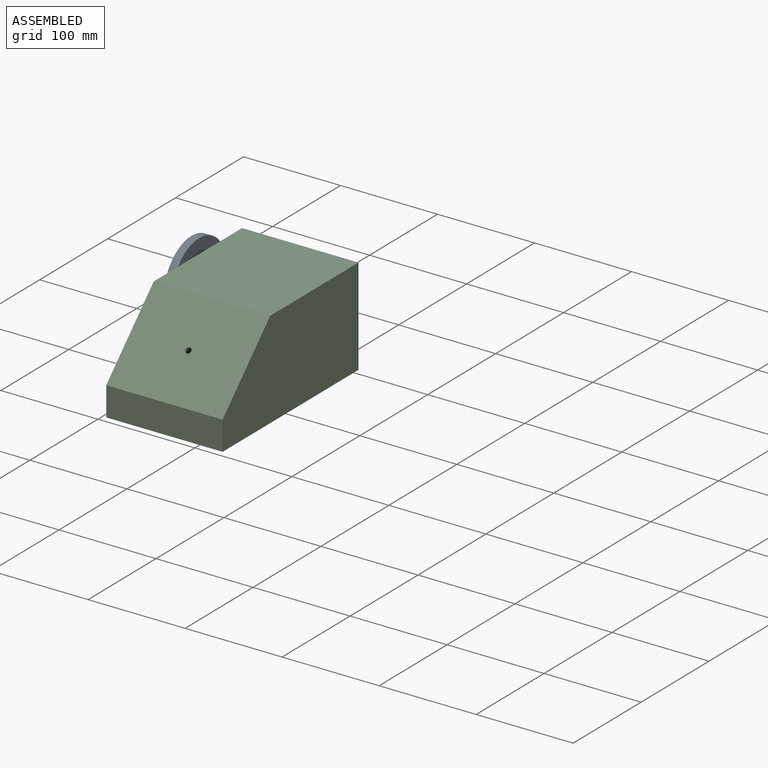
[diagram: assembled view]
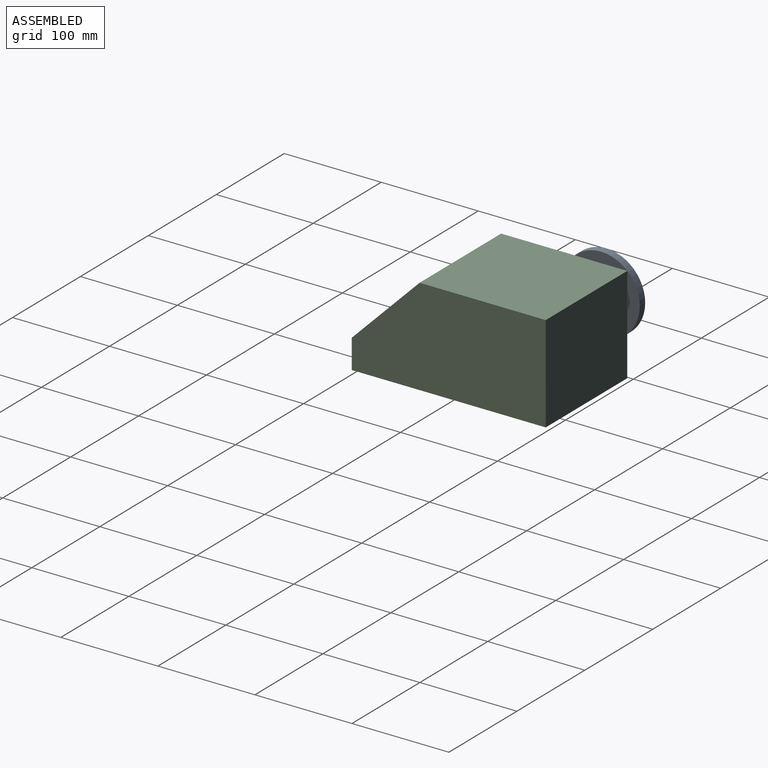
[diagram: assembled view, second angle]
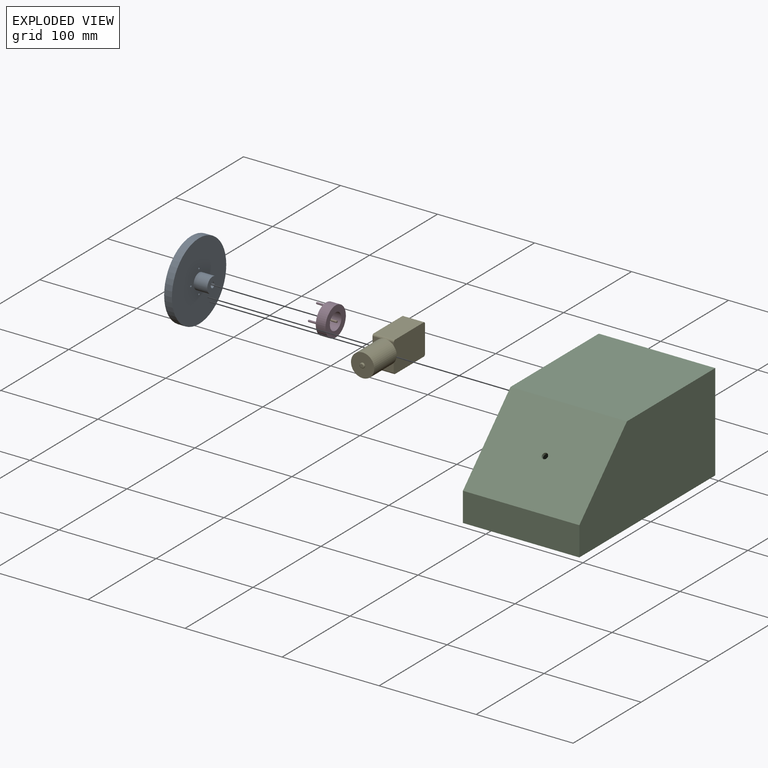
[diagram: exploded view]
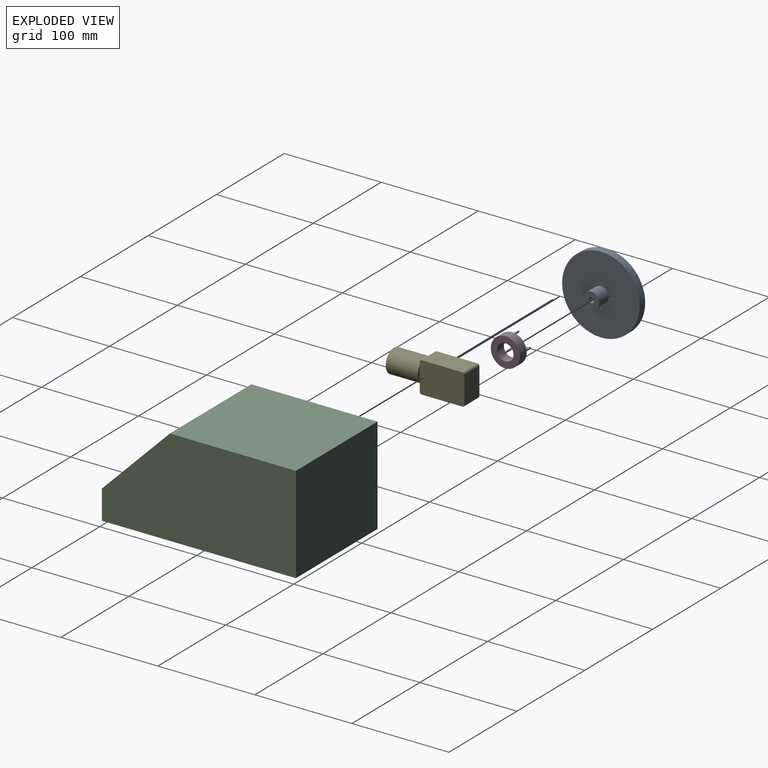
[diagram: exploded view, second angle]
ASSEMBLY  parts=5 mates=4
PART A: 15 faces, bbox 80x80x23.8 mm
  f0: cylinder r=1mm len=17mm, axis (0,0,1), area 106.8mm2, adj f2,f14
  f1: plane 80x80mm, normal (0,0,1), area 4366mm2, adj f3,f7
  f2: plane 15.94x15.94mm, normal (0,0,1), area 196.4mm2, adj f0,f8
  f3: cylinder r=40mm len=80mm, axis (0,0,-1), area 2010.6mm2, adj f1,f4
  f4: plane 80x80mm, normal (0,0,-1), area 4812.9mm2, adj f3,f5,f9,f10,f11,f12
  f5: cylinder r=8mm len=16mm, axis (0,0,1), area 703.7mm2, adj f4,f6
  f6: plane 16x16mm, normal (0,0,-1), area 177.3mm2, adj f5,f13
  f7: torus R=12mm, axis (0,0,1), area 510mm2, adj f1,f8,f9,f10,f11,f12
  f8: torus R=7.97mm, axis (0,0,-1), area 125.1mm2, adj f2,f7
  f9: cylinder r=1mm len=5.71mm, axis (0,0,-1), area 35.2mm2, adj f4,f7
  f10: cylinder r=1mm len=5.71mm, axis (0,0,-1), area 35.2mm2, adj f4,f7
  f11: cylinder r=1mm len=5.71mm, axis (0,0,-1), area 35.2mm2, adj f4,f7
  f12: cylinder r=1mm len=5.71mm, axis (0,0,-1), area 35.2mm2, adj f4,f7
  f13: cylinder r=2.75mm len=5.5mm, axis (0,0,-1), area 86.4mm2, adj f6,f14
  f14: plane 5.5x5.5mm, normal (0,0,-1), area 20.6mm2, adj f0,f13
PART B: 7 faces, bbox 2x2x20 mm
  f0: plane 1.94x0.75mm, normal (0,0,1), area 1.1mm2, adj f1,f5
  f1: cylinder r=1mm len=20mm, axis (0,0,-1), area 120.6mm2, adj f0,f2,f3,f4,f5,f6
  f2: plane 1.94x0.75mm, normal (0,0,1), area 1.1mm2, adj f1,f4
  f3: plane 2x2mm, normal (0,0,-1), area 3.1mm2, adj f1
  f4: plane 5x1.94mm, normal (-1,0,0), area 9.7mm2, adj f1,f2,f6
  f5: plane 5x1.94mm, normal (1,0,0), area 9.7mm2, adj f0,f1,f6
  f6: plane 2x0.5mm, normal (0,0,1), area 1mm2, adj f1,f4,f5
PART C: 19 faces, bbox 120x200x100 mm
  f0: plane 200x120mm, normal (0,0,-1), area 1884mm2, adj f1,f2,f3,f4,f7,f8,f9,f10
  f1: plane 120x30mm, normal (0,-1,0), area 3600mm2, adj f0,f2,f4,f6
  f2: plane 200x100mm, normal (1,0,0), area 17550mm2, adj f0,f1,f3,f5,f6
  f3: plane 120x100mm, normal (0,1,0), area 12000mm2, adj f0,f2,f4,f5
  f4: plane 200x100mm, normal (-1,0,0), area 17471.5mm2, adj f0,f1,f3,f5,f6,f13,f14,f15
  f5: plane 130x120mm, normal (0,0,1), area 15600mm2, adj f2,f3,f4,f6
  f6: plane 120x70mm, normal (0,-0.71,0.71), area 11851.1mm2, adj f1,f2,f4,f5,f18
  f7: plane 114x28.76mm, normal (0,1,0), area 3278.3mm2, adj f0,f8,f10,f12
  f8: plane 194x97mm, normal (-1,0,0), area 16489.5mm2, adj f0,f7,f9,f11,f12
  f9: plane 114x97mm, normal (0,-1,0), area 11058mm2, adj f0,f8,f10,f11
  f10: plane 194x97mm, normal (1,0,0), area 16410.9mm2, adj f0,f7,f9,f11,f12,f13,f14,f15
  f11: plane 125.76x114mm, normal (0,0,-1), area 14336.3mm2, adj f8,f9,f10,f12
  f12: plane 114x68.24mm, normal (0,0.71,-0.71), area 10973.8mm2, adj f7,f8,f10,f11,f18
  f13: cylinder r=1.5mm len=3mm, axis (-1,0,0), area 28.3mm2, adj f4,f10
  f14: cylinder r=1.5mm len=3mm, axis (-1,0,0), area 28.3mm2, adj f4,f10
  f15: cylinder r=1.5mm len=3mm, axis (-1,0,0), area 28.3mm2, adj f4,f10
  f16: cylinder r=1.5mm len=3mm, axis (-1,0,0), area 28.3mm2, adj f4,f10
  f17: cylinder r=4mm len=8mm, axis (-1,0,0), area 75.4mm2, adj f4,f10
  f18: cylinder r=3mm len=6.36mm, axis (0,-0.71,0.71), area 56.5mm2, adj f6,f12
PART D: 12 faces, bbox 30x30x20 mm
  f0: cylinder r=8.5mm len=17mm, axis (0,0,-1), area 534.1mm2, adj f2,f3
  f1: cylinder r=15mm len=30mm, axis (0,0,-1), area 942.5mm2, adj f2,f3
  f2: plane 30x30mm, normal (0,0,1), area 467.3mm2, adj f0,f1,f4,f5,f6,f7
  f3: plane 30x30mm, normal (0,0,-1), area 479.9mm2, adj f0,f1
  f4: cylinder r=1mm len=9mm, axis (0,0,-1), area 56.5mm2, adj f2,f11
  f5: cylinder r=1mm len=9mm, axis (0,0,-1), area 56.5mm2, adj f2,f9
  f6: cylinder r=1mm len=9mm, axis (0,0,-1), area 56.5mm2, adj f2,f8
  f7: cylinder r=1mm len=9mm, axis (0,0,-1), area 56.5mm2, adj f2,f10
  f8: sphere r=1mm, area 6.3mm2, adj f6
  f9: sphere r=1mm, area 6.3mm2, adj f5
  f10: sphere r=1mm, area 6.3mm2, adj f7
  f11: sphere r=1mm, area 6.3mm2, adj f4
PART E: 40 faces, bbox 32x80.5x41 mm
  f0: plane 4.2x3.06mm, normal (0,-1,0), area 5.4mm2, adj f6,f28,f34
  f1: plane 28x22mm, normal (0,-1,0), area 197.3mm2, adj f5,f6,f28,f36,f39
  f2: plane 42.27x22mm, normal (1,0,0), area 925.3mm2, adj f5,f6,f34,f35,f36,f37
  f3: plane 28x22mm, normal (0,1,0), area 616mm2, adj f5,f6,f37,f38
  f4: plane 42x22mm, normal (-1,0,0), area 924mm2, adj f5,f6,f38,f39
  f5: plane 46x32mm, normal (0,0,1), area 1181.9mm2, adj f1,f2,f3,f4,f7,f13,f17,f21
  f6: plane 46x32mm, normal (0,0,-1), area 1468.6mm2, adj f0,f1,f2,f3,f4,f30,f34,f37
  f7: cylinder r=6.5mm len=13mm, axis (0,0,-1), area 81.7mm2, adj f5,f8
  f8: plane 13x13mm, normal (0,0,1), area 114.7mm2, adj f7,f9,f10
  f9: cylinder r=2.75mm len=14mm, axis (0,0,-1), area 154mm2, adj f8,f10,f11
  f10: plane 14x5mm, normal (0,1,0), area 70mm2, adj f8,f9,f11
  f11: plane 5.5x3.9mm, normal (0,0,1), area 18mm2, adj f9,f10
  f12: cylinder r=1.5mm len=3mm, axis (0,0,-1), area 18.8mm2, adj f14,f15
  f13: cylinder r=3.5mm len=7mm, axis (0,0,-1), area 44mm2, adj f5,f14
  f14: plane 7x7mm, normal (0,0,1), area 31.4mm2, adj f12,f13
  f15: plane 3x3mm, normal (0,0,1), area 7.1mm2, adj f12
  f16: cylinder r=1.5mm len=3mm, axis (0,0,-1), area 18.8mm2, adj f18,f19
  f17: cylinder r=3.5mm len=7mm, axis (0,0,-1), area 44mm2, adj f5,f18
  f18: plane 7x7mm, normal (0,0,1), area 31.4mm2, adj f16,f17
  f19: plane 3x3mm, normal (0,0,1), area 7.1mm2, adj f16
  f20: cylinder r=1.5mm len=3mm, axis (0,0,-1), area 18.8mm2, adj f22,f23
  f21: cylinder r=3.5mm len=7mm, axis (0,0,-1), area 44mm2, adj f5,f22
  f22: plane 7x7mm, normal (0,0,1), area 31.4mm2, adj f20,f21
  f23: plane 3x3mm, normal (0,0,1), area 7.1mm2, adj f20
  f24: cylinder r=1.5mm len=3mm, axis (0,0,-1), area 18.8mm2, adj f26,f27
  f25: cylinder r=3.5mm len=7mm, axis (0,0,-1), area 44mm2, adj f5,f26
  f26: plane 7x7mm, normal (0,0,1), area 31.4mm2, adj f24,f25
  f27: plane 3x3mm, normal (0,0,1), area 7.1mm2, adj f24
  f28: cylinder r=12mm len=33mm, axis (0,1,0), area 2488.1mm2, adj f0,f1,f29,f30,f35
  f29: plane 24x24mm, normal (0,-1,0), area 432.8mm2, adj f28,f31
  f30: plane 15.87x3mm, normal (0,1,0), area 32.6mm2, adj f6,f28
  f31: cylinder r=2.5mm len=5mm, axis (0,1,0), area 7.9mm2, adj f29,f33
  f32: plane 3x3mm, normal (0,-1,0), area 7.1mm2, adj f33
  f33: torus R=1.5mm, axis (0,-1,0), area 21.1mm2, adj f31,f32
  f34: cylinder r=2mm len=4.2mm, axis (0,0,1), area 13.2mm2, adj f0,f2,f6,f35
  f35: bspline ~10.6x2.34mm, area 23.5mm2, adj f2,f28,f34,f36
  f36: cylinder r=2mm len=8.2mm, axis (0,0,1), area 25.8mm2, adj f1,f2,f5,f35
  f37: cylinder r=2mm len=22mm, axis (0,0,-1), area 69.1mm2, adj f2,f3,f5,f6
  f38: cylinder r=2mm len=22mm, axis (0,0,1), area 69.1mm2, adj f3,f4,f5,f6
  f39: cylinder r=2mm len=22mm, axis (0,0,-1), area 69.1mm2, adj f1,f4,f5,f6
PLACE A rot(axis=(0,-1,0),90deg) t=(-8.23,-39.19,-36.82)mm
PLACE B rot(axis=(0,-1,0),90deg) t=(-1.23,-39.19,-36.82)mm
PLACE C t=(68.77,-100.19,-97.82)mm
PLACE D rot(axis=(0,-1,0),90deg) t=(2.75,-39.19,-36.82)mm
PLACE E rot(axis=(0,-1,0),90deg) t=(35.77,-39.19,-36.82)mm
MATE fastened A.f0 <-> B.f1  axis (-1,0,0) through (-16.23,-39.19,-36.82)mm
MATE fastened E.f9 <-> A.f5  axis (-1,0,0) through (-2.23,-39.19,-36.82)mm
MATE slider A.f11 <-> D.f6  axis (1,0,0) through (-8.23,-51.19,-36.82)mm
MATE fastened E.f16 <-> C.f13  axis (-1,0,0) through (11.77,-30.19,-27.82)mm
